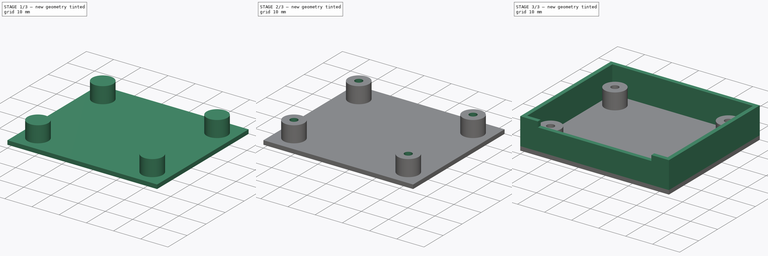
[diagram: build sequence overview — one tinted view per stage of 3, left to right]
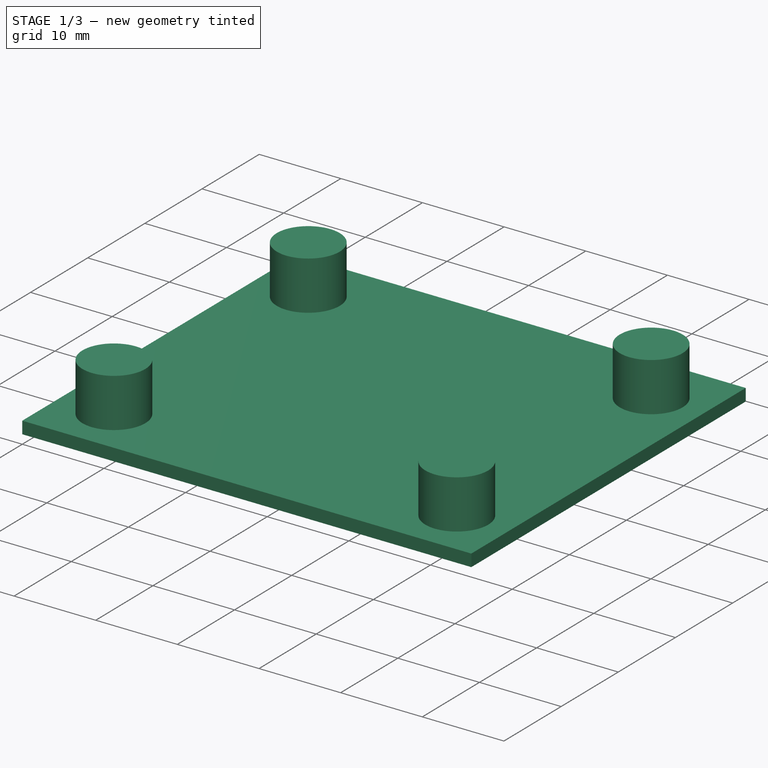
[diagram: stage 1 of 3 — iso view after this stage's code; geometry added in this stage tinted green]
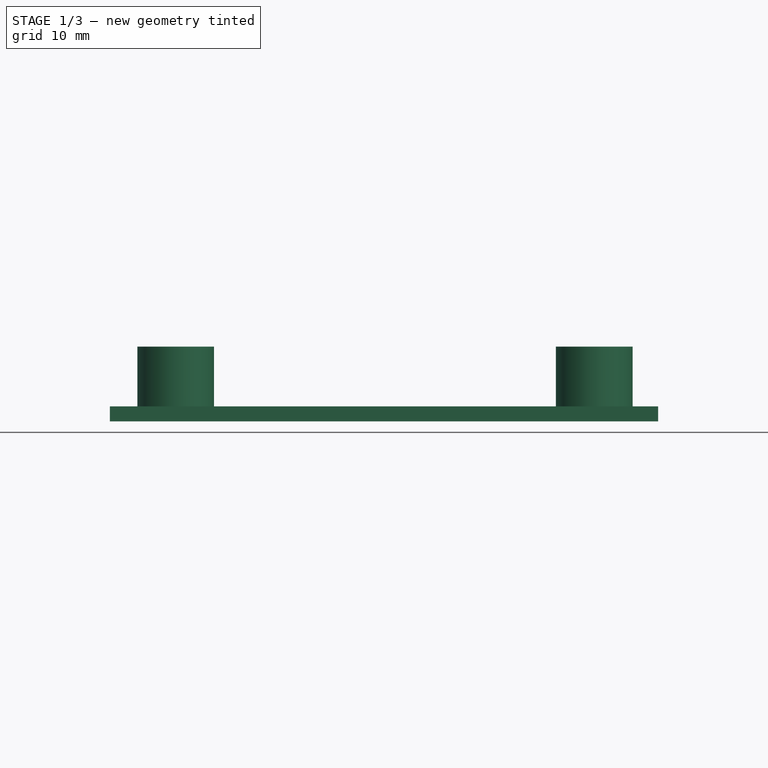
[diagram: stage 1 of 3 — front view after this stage's code; geometry added in this stage tinted green]
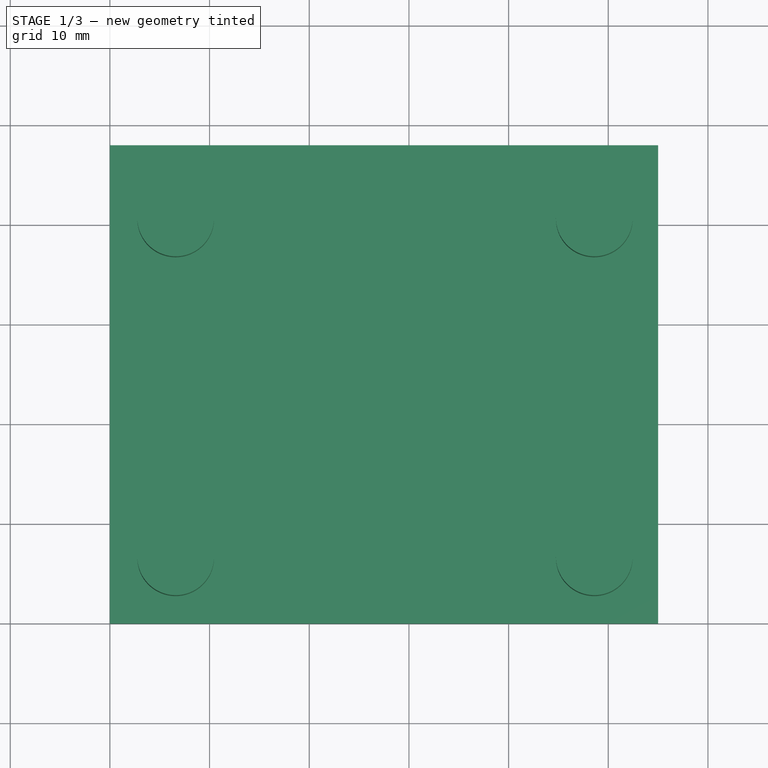
[diagram: stage 1 of 3 — top view after this stage's code; geometry added in this stage tinted green]
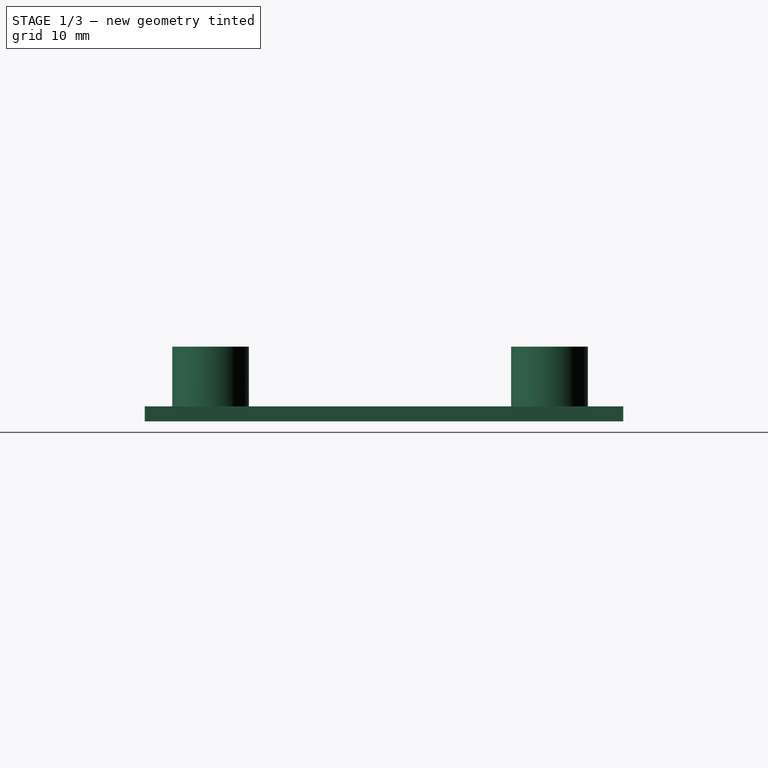
[diagram: stage 1 of 3 — right view after this stage's code; geometry added in this stage tinted green]
FCSTD DOCUMENT  (FreeCAD 0.20RUnknown)
Label: rj45_breakout
License: All rights reserved
LicenseURL: http://en.wikipedia.org/wiki/All_rights_reserved
objects: Sketcher::SketchObject×5, PartDesign::Pad×4, PartDesign::Pocket×1, PartDesign::Body×1, App::Part×1
note: 16 computed .brp shape members not serialized (recipe doc carries the construction recipe); baked Part::Feature solids carry a one-line shape summary decoded from their .brp

FEATURE [Sketcher::SketchObject] Sketch
  FullyConstrained = true
  MapMode = 5
  Support = -> [XY_Plane001]
  sketch-geometry (4):
    g0: LineSegment StartX=0 StartY=0 StartZ=0 EndX=0 EndY=48 EndZ=0
    g1: LineSegment StartX=0 StartY=48 StartZ=0 EndX=55 EndY=48 EndZ=0
    g2: LineSegment StartX=55 StartY=48 StartZ=0 EndX=55 EndY=0 EndZ=0
    g3: LineSegment StartX=0 StartY=0 StartZ=0 EndX=55 EndY=0 EndZ=0
  constraints (11):
    c: Vertical(g0)
    c: Coincident(g1,g0)
    c: Horizontal(g1)
    c: Coincident(g2,g1)
    c: Vertical(g2)
    c: Coincident(g3,g0)
    c: Coincident(g3,g2)
    c: Horizontal(g3)
    c: DistanceX(g1,g1) = 55
    c: DistanceY(g2,g2) = 48
    c: Coincident(g0,g-1)
FEATURE [PartDesign::Pad] Pad
  Direction = (0,0,1)
  Length = 1.5
  Length2 = 10
  Profile = -> Sketch
  ReferenceAxis = -> Sketch [N_Axis]
  Type = 0
FEATURE [Sketcher::SketchObject] Sketch001
  FullyConstrained = true
  MapMode = 5
  Placement = pos=(0,0,1.5) rot=(0,0,1;0rad)
  Support = -> [Pad]
  sketch-geometry (9):
    g0: LineSegment StartX=0 StartY=0 StartZ=0 EndX=6.6 EndY=0 EndZ=0
    g1: LineSegment StartX=6.6 StartY=0 StartZ=0 EndX=6.6 EndY=6.6 EndZ=0
    g2: Circle CenterX=6.6 CenterY=6.6 CenterZ=0 NormalX=0 NormalY=0 NormalZ=1 AngleXU=0 Radius=3.85
    g3: LineSegment StartX=6.6 StartY=6.6 StartZ=0 EndX=6.6 EndY=40.6 EndZ=0
    g4: Circle CenterX=6.6 CenterY=40.6 CenterZ=0 NormalX=0 NormalY=0 NormalZ=1 AngleXU=0 Radius=3.85
    g5: LineSegment StartX=6.6 StartY=40.6 StartZ=0 EndX=48.6 EndY=40.6 EndZ=0
    g6: LineSegment StartX=6.6 StartY=6.6 StartZ=0 EndX=48.6 EndY=6.6 EndZ=0
    g7: Circle CenterX=48.6 CenterY=40.6 CenterZ=0 NormalX=0 NormalY=0 NormalZ=1 AngleXU=0 Radius=3.85
    g8: Circle CenterX=48.6 CenterY=6.6 CenterZ=0 NormalX=0 NormalY=0 NormalZ=1 AngleXU=0 Radius=3.85
  constraints (23):
    c: Coincident(g0,g-1)
    c: PointOnObject(g0,g-1)
    c: Coincident(g1,g0)
    c: Vertical(g1)
    c: DistanceX(g0,g0) = 6.6
    c: DistanceY(g1,g1) = 6.6
    c: Coincident(g2,g1)
    c: Diameter(g2) = 7.7
    c: Coincident(g3,g2)
    c: Vertical(g3)
    c: DistanceY(g3,g3) = 34
    c: Coincident(g4,g3)
    c: Diameter(g4) = 7.7
    c: Coincident(g5,g4)
    c: Horizontal(g5)
    c: Coincident(g6,g2)
    c: Horizontal(g6)
    c: DistanceX(g5,g5) = 42
    c: DistanceX(g6,g6) = 42
    c: Coincident(g7,g5)
    c: Coincident(g8,g6)
    c: Diameter(g7) = 7.7
    c: Diameter(g8) = 7.7
FEATURE [PartDesign::Pad] Pad001
  BaseFeature = -> Pad
  Direction = (0,0,1)
  Length = 6
  Length2 = 10
  Profile = -> Sketch001
  ReferenceAxis = -> Sketch001 [N_Axis]
  Type = 0
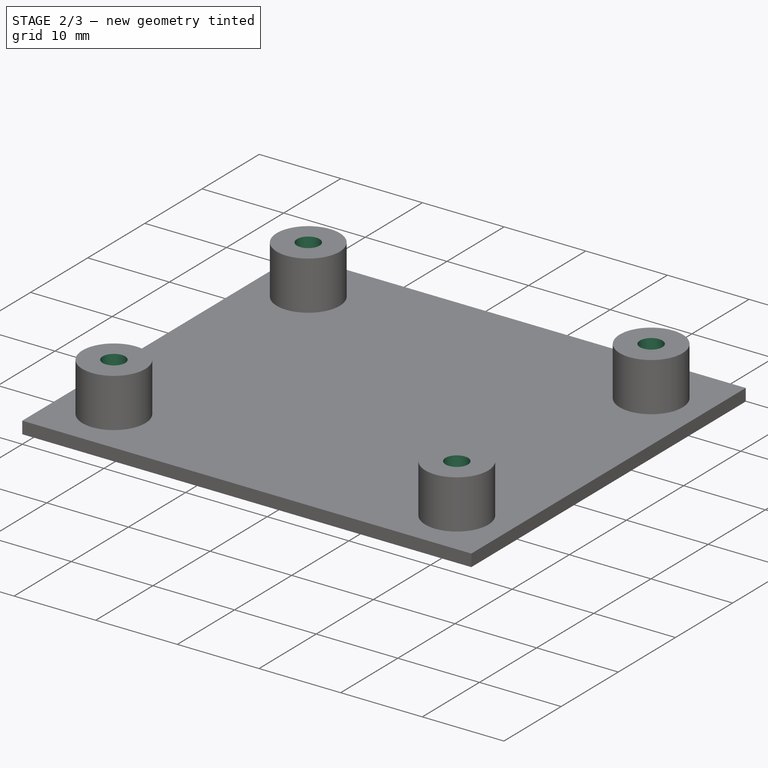
[diagram: stage 2 of 3 — iso view after this stage's code; geometry added in this stage tinted green]
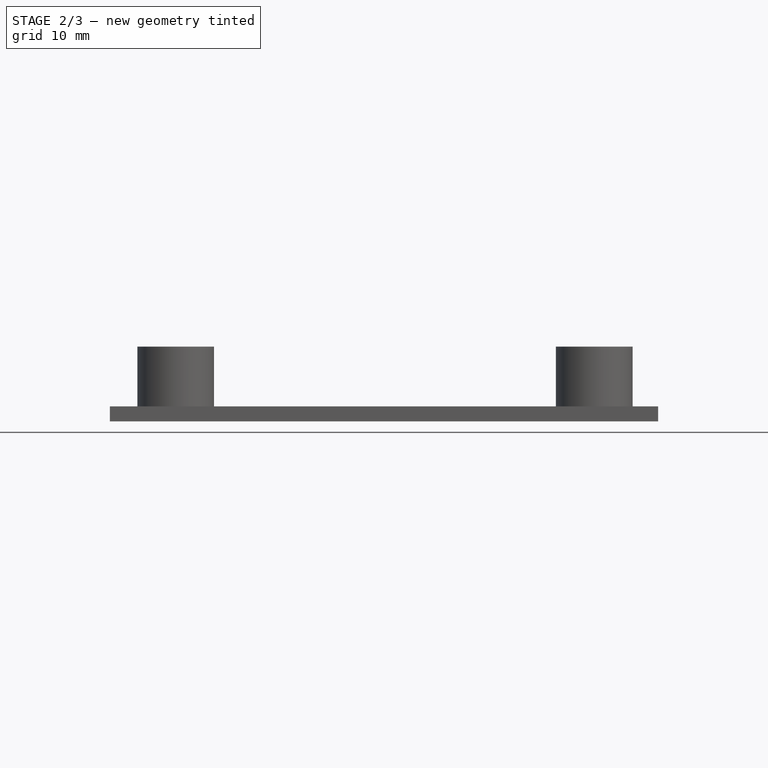
[diagram: stage 2 of 3 — front view after this stage's code; geometry added in this stage tinted green]
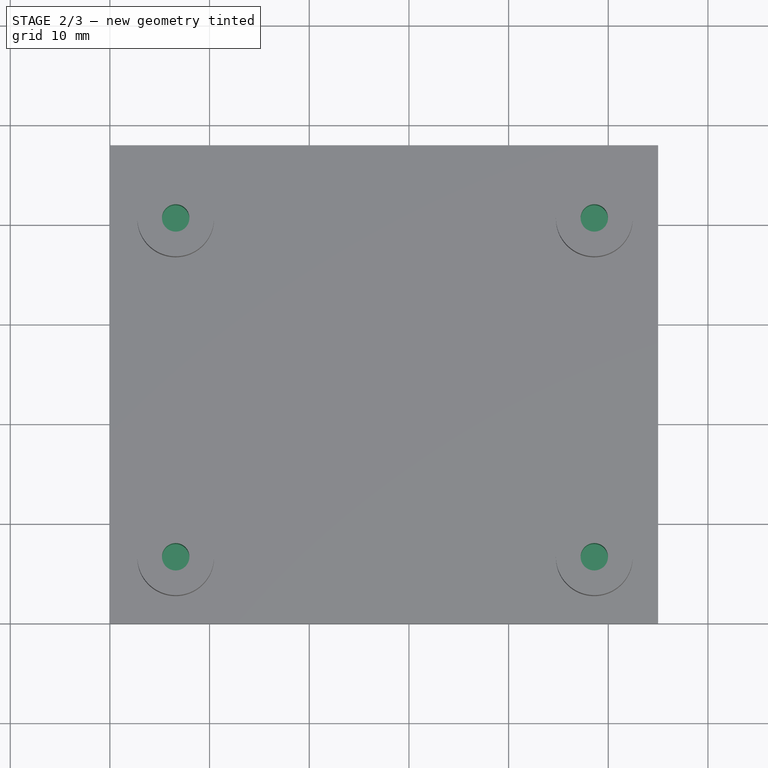
[diagram: stage 2 of 3 — top view after this stage's code; geometry added in this stage tinted green]
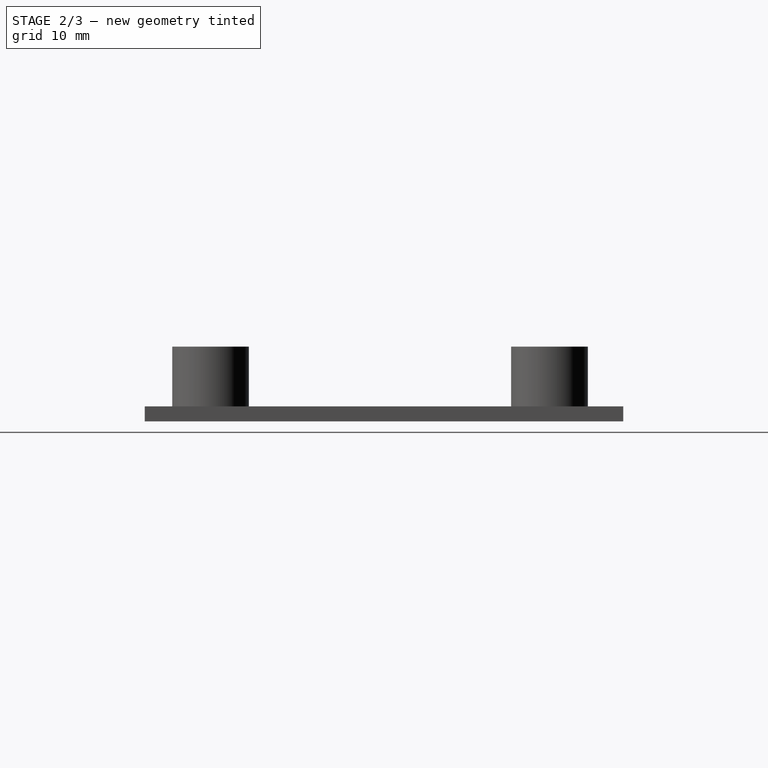
[diagram: stage 2 of 3 — right view after this stage's code; geometry added in this stage tinted green]
FEATURE [Sketcher::SketchObject] Sketch002
  FullyConstrained = true
  MapMode = 5
  Placement = pos=(0,0,7.5) rot=(0,0,1;0rad)
  Support = -> [Pad001]
  sketch-geometry (9):
    g0: LineSegment StartX=0 StartY=0 StartZ=0 EndX=6.6 EndY=0 EndZ=0
    g1: LineSegment StartX=6.6 StartY=0 StartZ=0 EndX=6.6 EndY=6.6 EndZ=0
    g2: LineSegment StartX=6.6 StartY=6.6 StartZ=0 EndX=6.6 EndY=40.6 EndZ=0
    g3: LineSegment StartX=6.6 StartY=6.6 StartZ=0 EndX=48.6 EndY=6.6 EndZ=0
    g4: LineSegment StartX=6.6 StartY=40.6 StartZ=0 EndX=48.6 EndY=40.6 EndZ=0
    g5: Circle CenterX=6.6 CenterY=6.6 CenterZ=0 NormalX=0 NormalY=0 NormalZ=1 AngleXU=0 Radius=1.375
    g6: Circle CenterX=6.6 CenterY=40.6 CenterZ=0 NormalX=0 NormalY=0 NormalZ=1 AngleXU=0 Radius=1.375
    g7: Circle CenterX=48.6 CenterY=40.6 CenterZ=0 NormalX=0 NormalY=0 NormalZ=1 AngleXU=0 Radius=1.375
    g8: Circle CenterX=48.6 CenterY=6.6 CenterZ=0 NormalX=0 NormalY=0 NormalZ=1 AngleXU=0 Radius=1.375
  constraints (23):
    c: Coincident(g0,g-1)
    c: PointOnObject(g0,g-1)
    c: Coincident(g1,g0)
    c: Vertical(g1)
    c: DistanceY(g1,g1) = 6.6
    c: DistanceX(g0,g0) = 6.6
    c: Coincident(g2,g1)
    c: Vertical(g2)
    c: Coincident(g3,g1)
    c: Horizontal(g3)
    c: Coincident(g4,g2)
    c: Horizontal(g4)
    c: DistanceX(g4,g4) = 42
    c: DistanceX(g3,g3) = 42
    c: DistanceY(g2,g2) = 34
    c: Coincident(g5,g1)
    c: Coincident(g6,g2)
    c: Coincident(g7,g4)
    c: Coincident(g8,g3)
    c: Diameter(g6) = 2.75
    c: Diameter(g7) = 2.75
    c: Diameter(g8) = 2.75
    c: Diameter(g5) = 2.75
FEATURE [PartDesign::Pocket] Pocket
  BaseFeature = -> Pad001
  Direction = (0,0,-1)
  Length = 6
  Length2 = 5
  Profile = -> Sketch002
  ReferenceAxis = -> Sketch002 [N_Axis]
  Type = 0
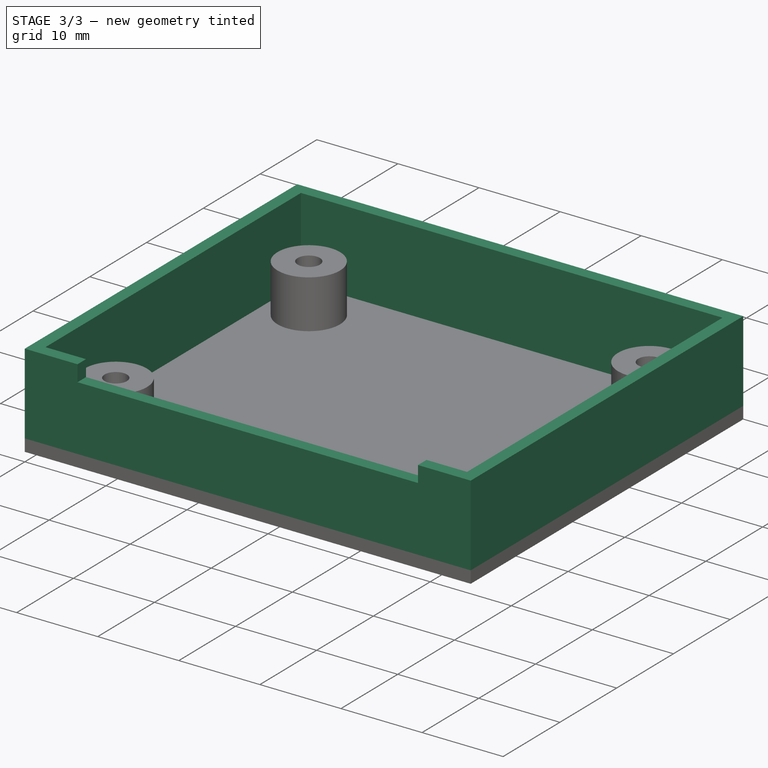
[diagram: stage 3 of 3 — iso view after this stage's code; geometry added in this stage tinted green]
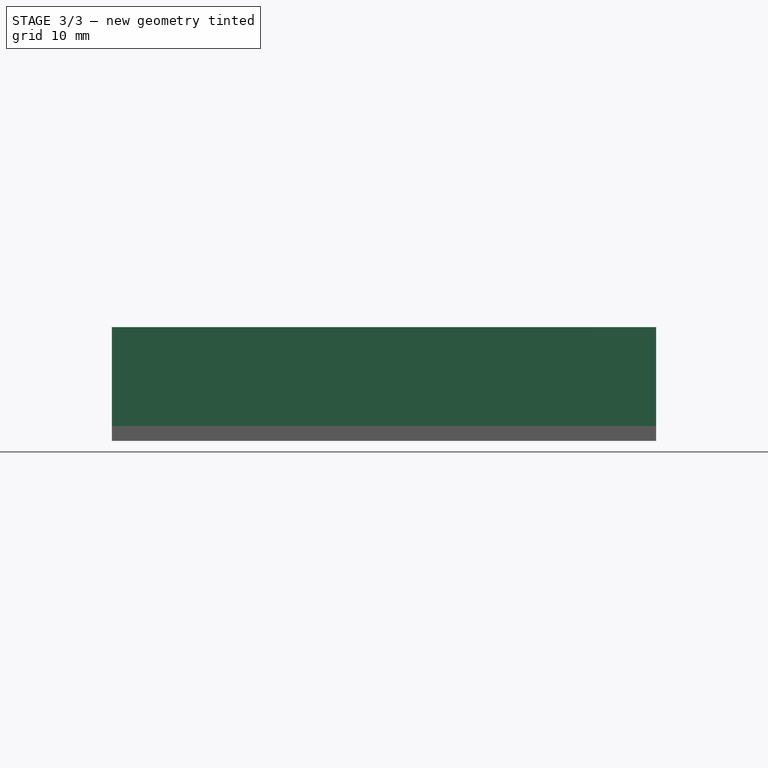
[diagram: stage 3 of 3 — front view after this stage's code; geometry added in this stage tinted green]
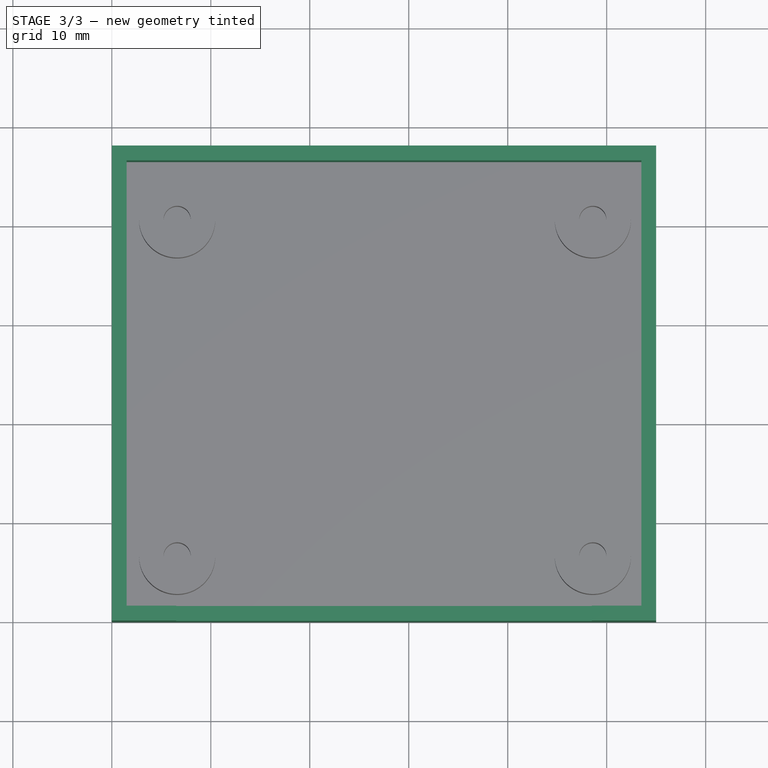
[diagram: stage 3 of 3 — top view after this stage's code; geometry added in this stage tinted green]
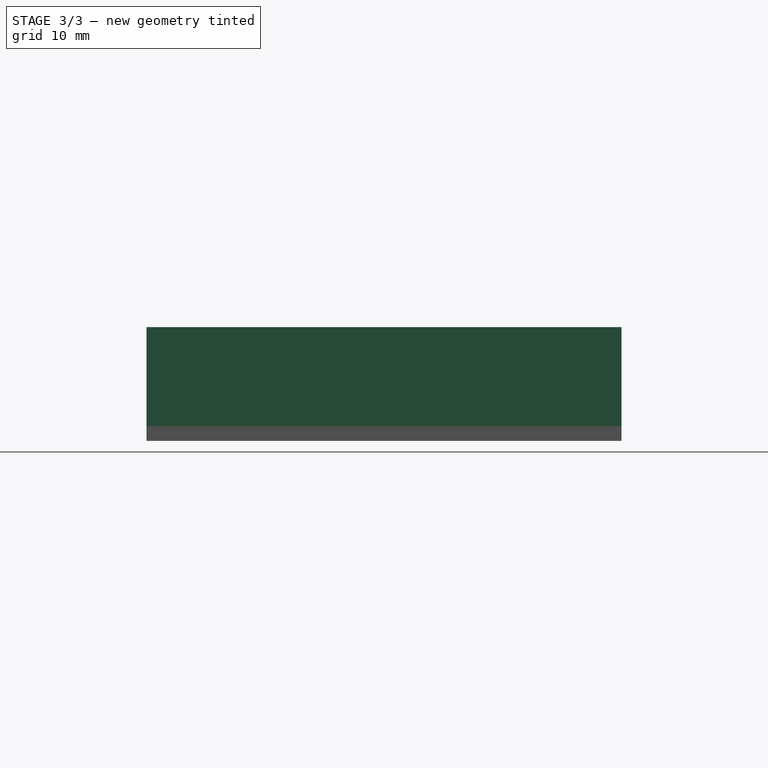
[diagram: stage 3 of 3 — right view after this stage's code; geometry added in this stage tinted green]
FEATURE [Sketcher::SketchObject] Sketch003
  FullyConstrained = true
  MapMode = 5
  Placement = pos=(0,0,1.5) rot=(0,0,1;0rad)
  Support = -> [Pocket]
  sketch-geometry (12):
    g0: LineSegment StartX=0 StartY=0 StartZ=0 EndX=0 EndY=48 EndZ=0
    g1: LineSegment StartX=0 StartY=48 StartZ=0 EndX=55 EndY=48 EndZ=0
    g2: LineSegment StartX=55 StartY=48 StartZ=0 EndX=55 EndY=0 EndZ=0
    g3: LineSegment StartX=55 StartY=0 StartZ=0 EndX=48.5 EndY=0 EndZ=0
    g4: LineSegment StartX=0 StartY=0 StartZ=0 EndX=6.5 EndY=0 EndZ=0
    g5: LineSegment StartX=6.5 StartY=0 StartZ=0 EndX=6.5 EndY=1.5 EndZ=0
    g6: LineSegment StartX=48.5 StartY=0 StartZ=0 EndX=48.5 EndY=1.5 EndZ=0
    g7: LineSegment StartX=48.5 StartY=1.5 StartZ=0 EndX=53.5 EndY=1.5 EndZ=0
    g8: LineSegment StartX=53.5 StartY=1.5 StartZ=0 EndX=53.5 EndY=46.5 EndZ=0
    g9: LineSegment StartX=6.5 StartY=1.5 StartZ=0 EndX=1.5 EndY=1.5 EndZ=0
    g10: LineSegment StartX=1.5 StartY=1.5 StartZ=0 EndX=1.5 EndY=46.5 EndZ=0
    g11: LineSegment StartX=1.5 StartY=46.5 StartZ=0 EndX=53.5 EndY=46.5 EndZ=0
  constraints (35):
    c: Coincident(g0,g-1)
    c: Vertical(g0)
    c: Coincident(g1,g0)
    c: Horizontal(g1)
    c: DistanceY(g0,g0) = 48
    c: DistanceX(g1,g1) = 55
    c: Coincident(g2,g1)
    c: Vertical(g2)
    c: Coincident(g3,g2)
    c: Horizontal(g3)
    c: DistanceY(g2,g2) = 48
    c: Coincident(g4,g0)
    c: DistanceX(g4,g4) = 6.5
    c: Coincident(g5,g4)
    c: Vertical(g5)
    c: Coincident(g6,g3)
    c: Vertical(g6)
    c: DistanceY(g6,g6) = 1.5
    c: DistanceY(g5,g5) = 1.5
    c: Horizontal(g4)
    c: DistanceX(g3,g3) = 6.5
    c: Coincident(g7,g6)
    c: Horizontal(g7)
    c: Coincident(g8,g7)
    c: Vertical(g8)
    c: Coincident(g9,g5)
    c: Horizontal(g9)
    c: Coincident(g10,g9)
    c: Vertical(g10)
    c: DistanceX(g7,g7) = 5
    c: DistanceX(g9,g9) = 5
    c: DistanceY(g10,g10) = 45
    c: DistanceY(g8,g8) = 45
    c: Coincident(g11,g10)
    c: Coincident(g11,g8)
FEATURE [PartDesign::Pad] Pad002
  BaseFeature = -> Pocket
  Direction = (0,0,1)
  Length = 10
  Length2 = 10
  Profile = -> Sketch003
  ReferenceAxis = -> Sketch003 [N_Axis]
  Type = 0
FEATURE [Sketcher::SketchObject] Sketch004
  FullyConstrained = true
  MapMode = 5
  Placement = pos=(0,0,1.5) rot=(0,0,1;0rad)
  Support = -> [Pad002]
  sketch-geometry (5):
    g0: LineSegment StartX=0 StartY=0 StartZ=0 EndX=6.5 EndY=0 EndZ=0
    g1: LineSegment StartX=6.5 StartY=0 StartZ=0 EndX=48.5 EndY=0 EndZ=0
    g2: LineSegment StartX=48.5 StartY=0 StartZ=0 EndX=48.5 EndY=1.5 EndZ=0
    g3: LineSegment StartX=48.5 StartY=1.5 StartZ=0 EndX=6.5 EndY=1.5 EndZ=0
    g4: LineSegment StartX=6.5 StartY=1.5 StartZ=0 EndX=6.5 EndY=0 EndZ=0
  constraints (14):
    c: Coincident(g0,g-1)
    c: DistanceX(g0,g0) = 6.5
    c: Coincident(g1,g0)
    c: Horizontal(g1)
    c: Coincident(g2,g1)
    c: Vertical(g2)
    c: Coincident(g3,g2)
    c: Horizontal(g3)
    c: Coincident(g4,g3)
    c: Coincident(g4,g1)
    c: Horizontal(g0)
    c: DistanceX(g1,g1) = 42
    c: DistanceX(g3,g3) = 42
    c: DistanceY(g2,g2) = 1.5
FEATURE [PartDesign::Pad] Pad003
  BaseFeature = -> Pad002
  Direction = (0,0,1)
  Length = 8
  Length2 = 10
  Profile = -> Sketch004
  ReferenceAxis = -> Sketch004 [N_Axis]
  Type = 0
FEATURE [PartDesign::Body] Body
  Group = -> [Sketch,Pad,Sketch001,Pad001,Sketch002,Pocket,Sketch003,Pad002,Sketch004,Pad003]
  Origin = -> Origin001
  Tip = -> Pad003
FEATURE [App::Part] Part
  Group = -> [Body]
  Origin = -> Origin
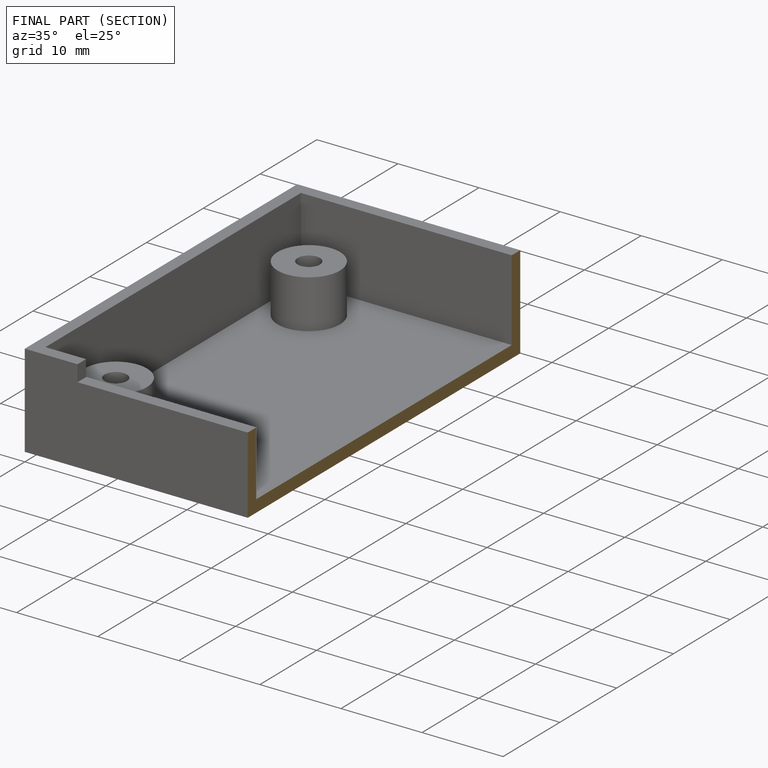
[diagram: finished part — half-section view (interior)]
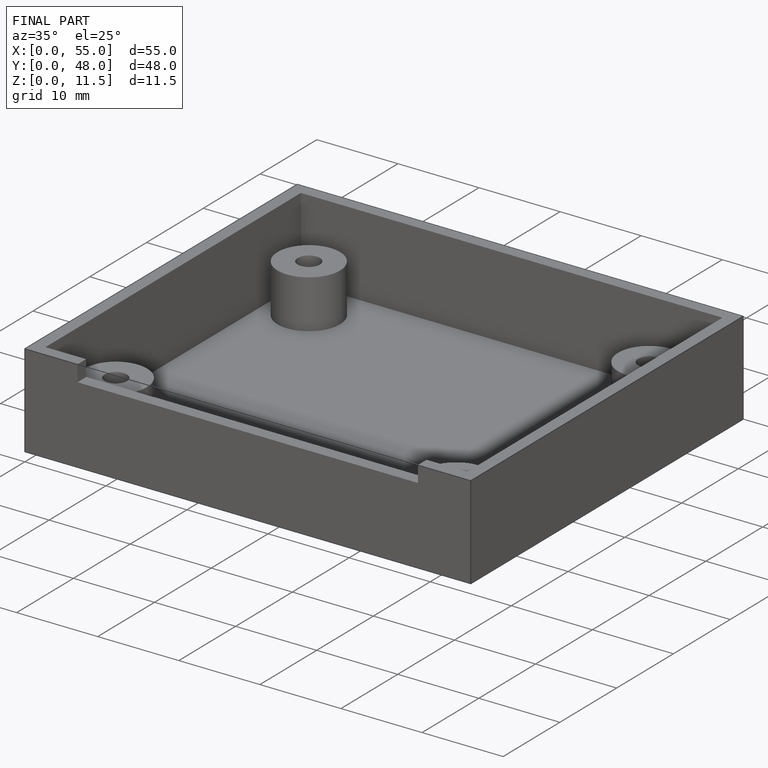
[diagram: finished part — iso view with bounding-box wireframe]
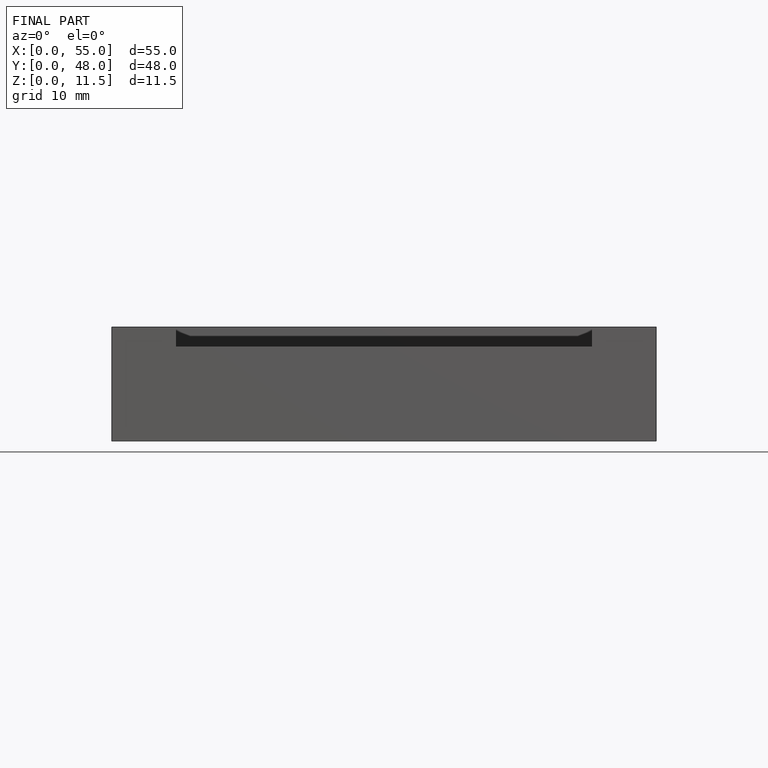
[diagram: finished part — front view with bounding-box wireframe]
